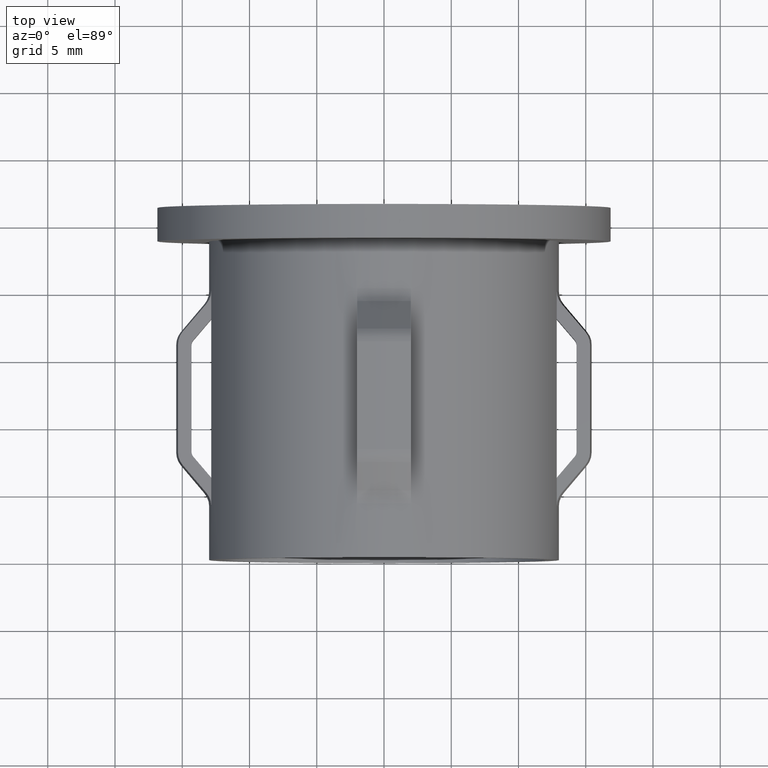
[diagram: clean part render]
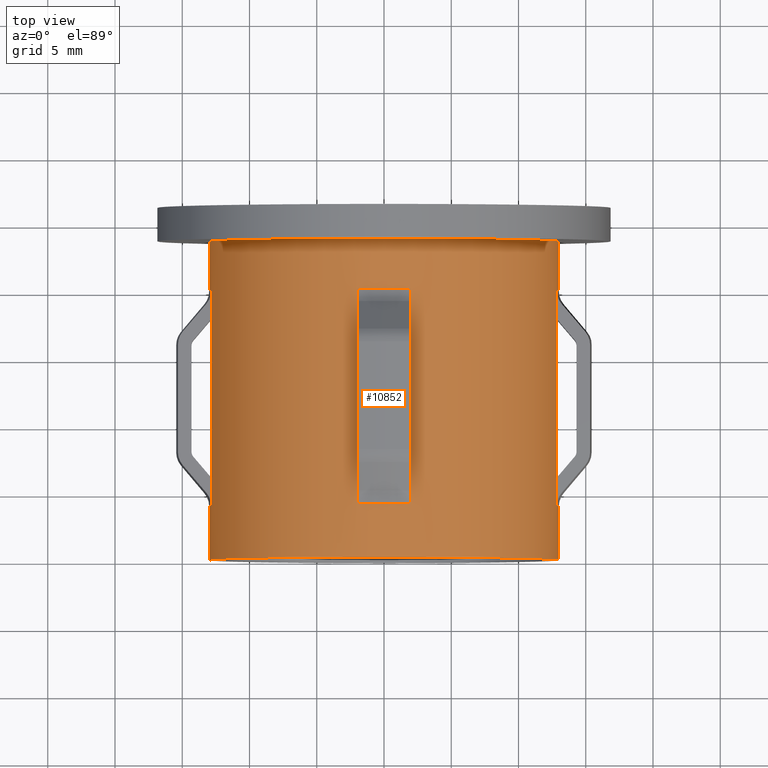
[diagram: same view with one face highlighted and labeled with its STEP entity id]
A machine part, top view. The second image highlights one B-rep face of the part: STEP entity #10852.
In plain terms, the highlighted cylindrical surface (partial cylindrical patch) has radius 13 mm, axis along (0, 1, -0).
Its self-contained STEP definition (entity closure, byte-faithful):
#41 = VECTOR ( 'NONE', #8921, 1000.000000000000000 ) ;
#513 = VERTEX_POINT ( 'NONE', #10369 ) ;
#517 = CARTESIAN_POINT ( 'NONE',  ( -12.84523257866513600, 20.00000000000000000, 2.000000000000000000 ) ) ;
#528 = LINE ( 'NONE', #9812, #11009 ) ;
#557 = EDGE_CURVE ( 'NONE', #6306, #12530, #13901, .T. ) ;
#857 = CARTESIAN_POINT ( 'NONE',  ( -1.999999999999996200, 4.000000000000000000, 12.84523257866513500 ) ) ;
#910 = VERTEX_POINT ( 'NONE', #1967 ) ;
#1056 = CARTESIAN_POINT ( 'NONE',  ( 12.84523257866513300, 6.098909951360178100, 2.000000000000000000 ) ) ;
#1106 = CIRCLE ( 'NONE', #6768, 12.99999999999999800 ) ;
#1185 = VECTOR ( 'NONE', #16644, 1000.000000000000000 ) ;
#1345 = AXIS2_PLACEMENT_3D ( 'NONE', #7717, #17263, #14847 ) ;
#1508 = DIRECTION ( 'NONE',  ( -0.0000000000000000000, -1.000000000000000000, -0.0000000000000000000 ) ) ;
#1660 = ORIENTED_EDGE ( 'NONE', *, *, #9382, .F. ) ;
#1675 = ORIENTED_EDGE ( 'NONE', *, *, #4050, .T. ) ;
#1707 = EDGE_LOOP ( 'NONE', ( #11958, #6382, #9339, #3371, #14430, #14376, #9288, #2114, #4167, #12868, #2324, #11397, #12775, #5713, #1660, #14044 ) ) ;
#1868 = CARTESIAN_POINT ( 'NONE',  ( 13.00000000000000500, 3.999999999999999100, 1.592040838891559700E-015 ) ) ;
#1907 = EDGE_CURVE ( 'NONE', #9477, #6306, #5327, .T. ) ;
#1967 = CARTESIAN_POINT ( 'NONE',  ( -1.999999999999996200, 19.99999999999999300, 12.84523257866512600 ) ) ;
#2026 = VERTEX_POINT ( 'NONE', #10787 ) ;
#2087 = CARTESIAN_POINT ( 'NONE',  ( -1.999999999999996200, 20.00000000000000000, 12.84523257866513500 ) ) ;
#2114 = ORIENTED_EDGE ( 'NONE', *, *, #11269, .T. ) ;
#2214 = CYLINDRICAL_SURFACE ( 'NONE', #3078, 13.00000000000000500 ) ;
#2298 = LINE ( 'NONE', #7032, #16375 ) ;
#2324 = ORIENTED_EDGE ( 'NONE', *, *, #8315, .T. ) ;
#2394 = VECTOR ( 'NONE', #12611, 1000.000000000000000 ) ;
#2408 = EDGE_CURVE ( 'NONE', #8626, #513, #10675, .T. ) ;
#2425 = VERTEX_POINT ( 'NONE', #15382 ) ;
#2433 = LINE ( 'NONE', #13881, #7799 ) ;
#2449 = CIRCLE ( 'NONE', #1345, 13.00000000000000700 ) ;
#2465 = EDGE_CURVE ( 'NONE', #910, #5181, #4242, .T. ) ;
#2482 = CARTESIAN_POINT ( 'NONE',  ( 2.000000000000004900, 20.00000000000000000, 12.84523257866513300 ) ) ;
#2669 = CARTESIAN_POINT ( 'NONE',  ( -1.263835496720068300E-015, 4.000000000000000000, 0.0000000000000000000 ) ) ;
#3063 = CARTESIAN_POINT ( 'NONE',  ( -1.999999999999996200, 20.00000000000000000, 12.84523257866513500 ) ) ;
#3078 = AXIS2_PLACEMENT_3D ( 'NONE', #4604, #11380, #7499 ) ;
#3106 = VECTOR ( 'NONE', #11439, 1000.000000000000000 ) ;
#3145 = CARTESIAN_POINT ( 'NONE',  ( -12.84523257866513600, 4.000000000000000000, 2.000000000000000000 ) ) ;
#3371 = ORIENTED_EDGE ( 'NONE', *, *, #4359, .F. ) ;
#3528 = EDGE_LOOP ( 'NONE', ( #9039, #5822, #4814, #12130, #14780, #11016, #1675, #15710 ) ) ;
#3610 = VERTEX_POINT ( 'NONE', #16299 ) ;
#3642 = LINE ( 'NONE', #6790, #12904 ) ;
#3718 = EDGE_CURVE ( 'NONE', #10443, #11919, #11312, .T. ) ;
#3749 = CARTESIAN_POINT ( 'NONE',  ( -13.00000000000000000, 23.69999999999999900, 0.0000000000000000000 ) ) ;
#3849 = CIRCLE ( 'NONE', #4795, 13.00000000000000700 ) ;
#3986 = DIRECTION ( 'NONE',  ( -1.000000000000000000, 6.672013369141561800E-017, 0.0000000000000000000 ) ) ;
#4050 = EDGE_CURVE ( 'NONE', #910, #11047, #16168, .T. ) ;
#4128 = CARTESIAN_POINT ( 'NONE',  ( -1.263835496720068300E-015, 4.000000000000000000, 0.0000000000000000000 ) ) ;
#4167 = ORIENTED_EDGE ( 'NONE', *, *, #2408, .F. ) ;
#4242 = LINE ( 'NONE', #2087, #17063 ) ;
#4357 = VERTEX_POINT ( 'NONE', #6909 ) ;
#4359 = EDGE_CURVE ( 'NONE', #15739, #10775, #2298, .T. ) ;
#4464 = CARTESIAN_POINT ( 'NONE',  ( -12.84523257866513600, 6.098909951360181700, 2.000000000000000000 ) ) ;
#4467 = DIRECTION ( 'NONE',  ( -0.0000000000000000000, -1.000000000000000000, -0.0000000000000000000 ) ) ;
#4545 = FACE_BOUND ( 'NONE', #3528, .T. ) ;
#4604 = CARTESIAN_POINT ( 'NONE',  ( 3.673940397442062800E-016, 26.19999999999999900, 0.0000000000000000000 ) ) ;
#4737 = DIRECTION ( 'NONE',  ( -0.0000000000000000000, -1.000000000000000000, -0.0000000000000000000 ) ) ;
#4795 = AXIS2_PLACEMENT_3D ( 'NONE', #4128, #12342, #11194 ) ;
#4814 = ORIENTED_EDGE ( 'NONE', *, *, #13680, .F. ) ;
#4887 = VERTEX_POINT ( 'NONE', #13966 ) ;
#5181 = VERTEX_POINT ( 'NONE', #10851 ) ;
#5195 = AXIS2_PLACEMENT_3D ( 'NONE', #14531, #13139, #10500 ) ;
#5203 = VERTEX_POINT ( 'NONE', #9584 ) ;
#5303 = CARTESIAN_POINT ( 'NONE',  ( -13.00000000000000700, 9.552245033349360500E-016, 0.0000000000000000000 ) ) ;
#5327 = CIRCLE ( 'NONE', #5195, 13.00000000000000500 ) ;
#5355 = DIRECTION ( 'NONE',  ( 7.347880794884120200E-017, 1.000000000000000000, -0.0000000000000000000 ) ) ;
#5522 = DIRECTION ( 'NONE',  ( 7.347880794884120200E-017, 1.000000000000000000, -0.0000000000000000000 ) ) ;
#5645 = VECTOR ( 'NONE', #11645, 1000.000000000000000 ) ;
#5713 = ORIENTED_EDGE ( 'NONE', *, *, #9981, .T. ) ;
#5813 = LINE ( 'NONE', #7123, #2394 ) ;
#5822 = ORIENTED_EDGE ( 'NONE', *, *, #17310, .T. ) ;
#6069 = LINE ( 'NONE', #2482, #14233 ) ;
#6098 = CARTESIAN_POINT ( 'NONE',  ( 13.00000000000000500, 26.19999999999999900, 1.592040838891559700E-015 ) ) ;
#6306 = VERTEX_POINT ( 'NONE', #16984 ) ;
#6382 = ORIENTED_EDGE ( 'NONE', *, *, #557, .T. ) ;
#6390 = VERTEX_POINT ( 'NONE', #3145 ) ;
#6447 = AXIS2_PLACEMENT_3D ( 'NONE', #14038, #8559, #12799 ) ;
#6575 = DIRECTION ( 'NONE',  ( 0.0000000000000000000, -1.000000000000000000, 0.0000000000000000000 ) ) ;
#6630 = VERTEX_POINT ( 'NONE', #7868 ) ;
#6768 = AXIS2_PLACEMENT_3D ( 'NONE', #9377, #13455, #14619 ) ;
#6790 = CARTESIAN_POINT ( 'NONE',  ( -13.00000000000000500, 26.19999999999999900, 0.0000000000000000000 ) ) ;
#6870 = CARTESIAN_POINT ( 'NONE',  ( -12.84523257866513600, 20.00000000000000000, 2.000000000000000000 ) ) ;
#6901 = EDGE_CURVE ( 'NONE', #6630, #8626, #8466, .T. ) ;
#6909 = CARTESIAN_POINT ( 'NONE',  ( -13.00000000000000900, 4.000000000000000900, 0.0000000000000000000 ) ) ;
#7032 = CARTESIAN_POINT ( 'NONE',  ( 12.84523257866513300, 20.00000000000000000, 2.000000000000000000 ) ) ;
#7123 = CARTESIAN_POINT ( 'NONE',  ( 13.00000000000000500, 26.19999999999999900, 1.592040838891559700E-015 ) ) ;
#7244 = EDGE_CURVE ( 'NONE', #5181, #10443, #10813, .T. ) ;
#7315 = LINE ( 'NONE', #14739, #14358 ) ;
#7499 = DIRECTION ( 'NONE',  ( -1.000000000000000000, 0.0000000000000000000, 0.0000000000000000000 ) ) ;
#7711 = VECTOR ( 'NONE', #11685, 1000.000000000000000 ) ;
#7717 = CARTESIAN_POINT ( 'NONE',  ( -1.263835496720068300E-015, 4.000000000000000000, 0.0000000000000000000 ) ) ;
#7746 = LINE ( 'NONE', #15454, #8813 ) ;
#7799 = VECTOR ( 'NONE', #1508, 1000.000000000000000 ) ;
#7868 = CARTESIAN_POINT ( 'NONE',  ( -12.99999999999999800, 19.99999999999999300, 0.0000000000000000000 ) ) ;
#7871 = EDGE_CURVE ( 'NONE', #11047, #2425, #6069, .T. ) ;
#8011 = VERTEX_POINT ( 'NONE', #4464 ) ;
#8078 = DIRECTION ( 'NONE',  ( -0.0000000000000000000, -1.000000000000000000, -0.0000000000000000000 ) ) ;
#8265 = EDGE_CURVE ( 'NONE', #10775, #12530, #10615, .T. ) ;
#8315 = EDGE_CURVE ( 'NONE', #6630, #17267, #13393, .T. ) ;
#8353 = CARTESIAN_POINT ( 'NONE',  ( 12.84523257866513300, 4.000000000000000000, 2.000000000000000000 ) ) ;
#8466 = LINE ( 'NONE', #16843, #3106 ) ;
#8559 = DIRECTION ( 'NONE',  ( 7.347880794884120200E-017, 1.000000000000000000, -0.0000000000000000000 ) ) ;
#8626 = VERTEX_POINT ( 'NONE', #3749 ) ;
#8665 = CARTESIAN_POINT ( 'NONE',  ( -8.817456953860934700E-017, 19.99999999999999300, 0.0000000000000000000 ) ) ;
#8813 = VECTOR ( 'NONE', #16840, 1000.000000000000000 ) ;
#8921 = DIRECTION ( 'NONE',  ( 0.0000000000000000000, -1.000000000000000000, 0.0000000000000000000 ) ) ;
#9039 = ORIENTED_EDGE ( 'NONE', *, *, #12375, .T. ) ;
#9152 = VECTOR ( 'NONE', #12625, 1000.000000000000000 ) ;
#9218 = EDGE_CURVE ( 'NONE', #4887, #16609, #528, .T. ) ;
#9288 = ORIENTED_EDGE ( 'NONE', *, *, #17081, .T. ) ;
#9296 = LINE ( 'NONE', #517, #5645 ) ;
#9339 = ORIENTED_EDGE ( 'NONE', *, *, #8265, .F. ) ;
#9377 = CARTESIAN_POINT ( 'NONE',  ( -8.817456953860934700E-017, 19.99999999999999300, 0.0000000000000000000 ) ) ;
#9382 = EDGE_CURVE ( 'NONE', #4357, #6390, #2449, .T. ) ;
#9477 = VERTEX_POINT ( 'NONE', #5303 ) ;
#9584 = CARTESIAN_POINT ( 'NONE',  ( 2.000000000000004900, 4.000000000000000000, 12.84523257866513300 ) ) ;
#9637 = EDGE_CURVE ( 'NONE', #17267, #12097, #9296, .T. ) ;
#9812 = CARTESIAN_POINT ( 'NONE',  ( 12.84523257866513300, 20.00000000000000000, 2.000000000000000000 ) ) ;
#9981 = EDGE_CURVE ( 'NONE', #8011, #6390, #2433, .T. ) ;
#10090 = DIRECTION ( 'NONE',  ( 7.347880794884120200E-017, 1.000000000000000000, -0.0000000000000000000 ) ) ;
#10369 = CARTESIAN_POINT ( 'NONE',  ( 13.00000000000000000, 23.69999999999999900, 1.592040838891559500E-015 ) ) ;
#10395 = AXIS2_PLACEMENT_3D ( 'NONE', #13568, #5355, #10926 ) ;
#10443 = VERTEX_POINT ( 'NONE', #13977 ) ;
#10500 = DIRECTION ( 'NONE',  ( -1.000000000000000000, 7.347880794884120200E-017, 0.0000000000000000000 ) ) ;
#10615 = CIRCLE ( 'NONE', #12905, 13.00000000000000700 ) ;
#10675 = CIRCLE ( 'NONE', #6447, 13.00000000000000000 ) ;
#10775 = VERTEX_POINT ( 'NONE', #8353 ) ;
#10787 = CARTESIAN_POINT ( 'NONE',  ( 2.000000000000004900, 6.098909951360178100, 12.84523257866513300 ) ) ;
#10813 = LINE ( 'NONE', #15261, #1185 ) ;
#10851 = CARTESIAN_POINT ( 'NONE',  ( -1.999999999999996200, 17.90109004863980900, 12.84523257866513500 ) ) ;
#10852 = ADVANCED_FACE ( 'NONE', ( #4545, #14587 ), #2214, .T. ) ;
#10926 = DIRECTION ( 'NONE',  ( -1.000000000000000000, 0.0000000000000000000, 0.0000000000000000000 ) ) ;
#11006 = EDGE_CURVE ( 'NONE', #12097, #8011, #12049, .T. ) ;
#11009 = VECTOR ( 'NONE', #4467, 1000.000000000000000 ) ;
#11016 = ORIENTED_EDGE ( 'NONE', *, *, #2465, .F. ) ;
#11047 = VERTEX_POINT ( 'NONE', #13468 ) ;
#11194 = DIRECTION ( 'NONE',  ( -1.000000000000000000, 6.672013369141561800E-017, 0.0000000000000000000 ) ) ;
#11198 = CARTESIAN_POINT ( 'NONE',  ( -12.84523257866513600, 17.90109004863980500, 2.000000000000000000 ) ) ;
#11269 = EDGE_CURVE ( 'NONE', #3610, #513, #5813, .T. ) ;
#11312 = LINE ( 'NONE', #3063, #9152 ) ;
#11380 = DIRECTION ( 'NONE',  ( 7.347880794884120200E-017, 1.000000000000000000, -0.0000000000000000000 ) ) ;
#11397 = ORIENTED_EDGE ( 'NONE', *, *, #9637, .T. ) ;
#11439 = DIRECTION ( 'NONE',  ( 7.347880794884120200E-017, 1.000000000000000000, -0.0000000000000000000 ) ) ;
#11645 = DIRECTION ( 'NONE',  ( -0.0000000000000000000, -1.000000000000000000, -0.0000000000000000000 ) ) ;
#11666 = DIRECTION ( 'NONE',  ( -0.0000000000000000000, -1.000000000000000000, -0.0000000000000000000 ) ) ;
#11685 = DIRECTION ( 'NONE',  ( 7.347880794884120200E-017, 1.000000000000000000, -0.0000000000000000000 ) ) ;
#11919 = VERTEX_POINT ( 'NONE', #857 ) ;
#11958 = ORIENTED_EDGE ( 'NONE', *, *, #1907, .T. ) ;
#12049 = LINE ( 'NONE', #14343, #41 ) ;
#12097 = VERTEX_POINT ( 'NONE', #11198 ) ;
#12130 = ORIENTED_EDGE ( 'NONE', *, *, #3718, .F. ) ;
#12149 = EDGE_CURVE ( 'NONE', #16609, #15739, #7746, .T. ) ;
#12342 = DIRECTION ( 'NONE',  ( 7.347880794884120200E-017, 1.000000000000000000, -0.0000000000000000000 ) ) ;
#12375 = EDGE_CURVE ( 'NONE', #2425, #2026, #7315, .T. ) ;
#12429 = AXIS2_PLACEMENT_3D ( 'NONE', #8665, #10090, #15542 ) ;
#12530 = VERTEX_POINT ( 'NONE', #1868 ) ;
#12611 = DIRECTION ( 'NONE',  ( 7.347880794884120200E-017, 1.000000000000000000, -0.0000000000000000000 ) ) ;
#12625 = DIRECTION ( 'NONE',  ( -0.0000000000000000000, -1.000000000000000000, -0.0000000000000000000 ) ) ;
#12775 = ORIENTED_EDGE ( 'NONE', *, *, #11006, .T. ) ;
#12799 = DIRECTION ( 'NONE',  ( -1.000000000000000000, 0.0000000000000000000, 0.0000000000000000000 ) ) ;
#12868 = ORIENTED_EDGE ( 'NONE', *, *, #6901, .F. ) ;
#12904 = VECTOR ( 'NONE', #5522, 1000.000000000000000 ) ;
#12905 = AXIS2_PLACEMENT_3D ( 'NONE', #2669, #13506, #3986 ) ;
#13139 = DIRECTION ( 'NONE',  ( 7.347880794884120200E-017, 1.000000000000000000, -0.0000000000000000000 ) ) ;
#13393 = CIRCLE ( 'NONE', #10395, 12.99999999999999800 ) ;
#13455 = DIRECTION ( 'NONE',  ( 7.347880794884120200E-017, 1.000000000000000000, -0.0000000000000000000 ) ) ;
#13468 = CARTESIAN_POINT ( 'NONE',  ( 2.000000000000004900, 20.00000000000000000, 12.84523257866513300 ) ) ;
#13506 = DIRECTION ( 'NONE',  ( 7.347880794884120200E-017, 1.000000000000000000, -0.0000000000000000000 ) ) ;
#13568 = CARTESIAN_POINT ( 'NONE',  ( -8.817456953860934700E-017, 19.99999999999999300, 0.0000000000000000000 ) ) ;
#13680 = EDGE_CURVE ( 'NONE', #11919, #5203, #3849, .T. ) ;
#13733 = CARTESIAN_POINT ( 'NONE',  ( 2.000000000000004900, 20.00000000000000000, 12.84523257866513300 ) ) ;
#13881 = CARTESIAN_POINT ( 'NONE',  ( -12.84523257866513600, 20.00000000000000000, 2.000000000000000000 ) ) ;
#13901 = LINE ( 'NONE', #6098, #7711 ) ;
#13966 = CARTESIAN_POINT ( 'NONE',  ( 12.84523257866512600, 19.99999999999999300, 2.000000000000000000 ) ) ;
#13977 = CARTESIAN_POINT ( 'NONE',  ( -1.999999999999996200, 6.098909951360182500, 12.84523257866513500 ) ) ;
#14038 = CARTESIAN_POINT ( 'NONE',  ( 1.836970198721034600E-016, 23.69999999999999900, 0.0000000000000000000 ) ) ;
#14044 = ORIENTED_EDGE ( 'NONE', *, *, #15238, .F. ) ;
#14055 = CARTESIAN_POINT ( 'NONE',  ( 12.84523257866513300, 17.90109004863980900, 2.000000000000000000 ) ) ;
#14233 = VECTOR ( 'NONE', #4737, 1000.000000000000000 ) ;
#14343 = CARTESIAN_POINT ( 'NONE',  ( -12.84523257866513600, 39.03747499983877800, 2.000000000000000000 ) ) ;
#14358 = VECTOR ( 'NONE', #6575, 1000.000000000000000 ) ;
#14376 = ORIENTED_EDGE ( 'NONE', *, *, #9218, .F. ) ;
#14430 = ORIENTED_EDGE ( 'NONE', *, *, #12149, .F. ) ;
#14531 = CARTESIAN_POINT ( 'NONE',  ( -1.557750728515433000E-015, 0.0000000000000000000, 0.0000000000000000000 ) ) ;
#14587 = FACE_OUTER_BOUND ( 'NONE', #1707, .T. ) ;
#14619 = DIRECTION ( 'NONE',  ( -1.000000000000000000, 0.0000000000000000000, 0.0000000000000000000 ) ) ;
#14739 = CARTESIAN_POINT ( 'NONE',  ( 2.000000000000004900, 39.03747499983877800, 12.84523257866513300 ) ) ;
#14780 = ORIENTED_EDGE ( 'NONE', *, *, #7244, .F. ) ;
#14847 = DIRECTION ( 'NONE',  ( -1.000000000000000000, 6.672013369141561800E-017, 0.0000000000000000000 ) ) ;
#14999 = DIRECTION ( 'NONE',  ( -0.0000000000000000000, -1.000000000000000000, -0.0000000000000000000 ) ) ;
#15171 = VECTOR ( 'NONE', #8078, 1000.000000000000000 ) ;
#15238 = EDGE_CURVE ( 'NONE', #9477, #4357, #3642, .T. ) ;
#15261 = CARTESIAN_POINT ( 'NONE',  ( -1.999999999999996200, 39.03747499983877800, 12.84523257866513500 ) ) ;
#15382 = CARTESIAN_POINT ( 'NONE',  ( 2.000000000000004900, 17.90109004863980900, 12.84523257866513300 ) ) ;
#15454 = CARTESIAN_POINT ( 'NONE',  ( 12.84523257866513300, 39.03747499983877800, 2.000000000000000000 ) ) ;
#15542 = DIRECTION ( 'NONE',  ( -1.000000000000000000, 0.0000000000000000000, 0.0000000000000000000 ) ) ;
#15710 = ORIENTED_EDGE ( 'NONE', *, *, #7871, .T. ) ;
#15739 = VERTEX_POINT ( 'NONE', #1056 ) ;
#16168 = CIRCLE ( 'NONE', #12429, 12.99999999999999800 ) ;
#16299 = CARTESIAN_POINT ( 'NONE',  ( 12.99999999999999800, 19.99999999999999300, 1.592040838891559300E-015 ) ) ;
#16375 = VECTOR ( 'NONE', #14999, 1000.000000000000000 ) ;
#16458 = LINE ( 'NONE', #13733, #15171 ) ;
#16609 = VERTEX_POINT ( 'NONE', #14055 ) ;
#16644 = DIRECTION ( 'NONE',  ( 0.0000000000000000000, -1.000000000000000000, 0.0000000000000000000 ) ) ;
#16840 = DIRECTION ( 'NONE',  ( 0.0000000000000000000, -1.000000000000000000, 0.0000000000000000000 ) ) ;
#16843 = CARTESIAN_POINT ( 'NONE',  ( -13.00000000000000500, 26.19999999999999900, 0.0000000000000000000 ) ) ;
#16984 = CARTESIAN_POINT ( 'NONE',  ( 13.00000000000000400, -9.552245033349360500E-016, 1.592040838891559700E-015 ) ) ;
#17063 = VECTOR ( 'NONE', #11666, 1000.000000000000000 ) ;
#17081 = EDGE_CURVE ( 'NONE', #4887, #3610, #1106, .T. ) ;
#17263 = DIRECTION ( 'NONE',  ( 7.347880794884120200E-017, 1.000000000000000000, -0.0000000000000000000 ) ) ;
#17267 = VERTEX_POINT ( 'NONE', #6870 ) ;
#17310 = EDGE_CURVE ( 'NONE', #2026, #5203, #16458, .T. ) ;